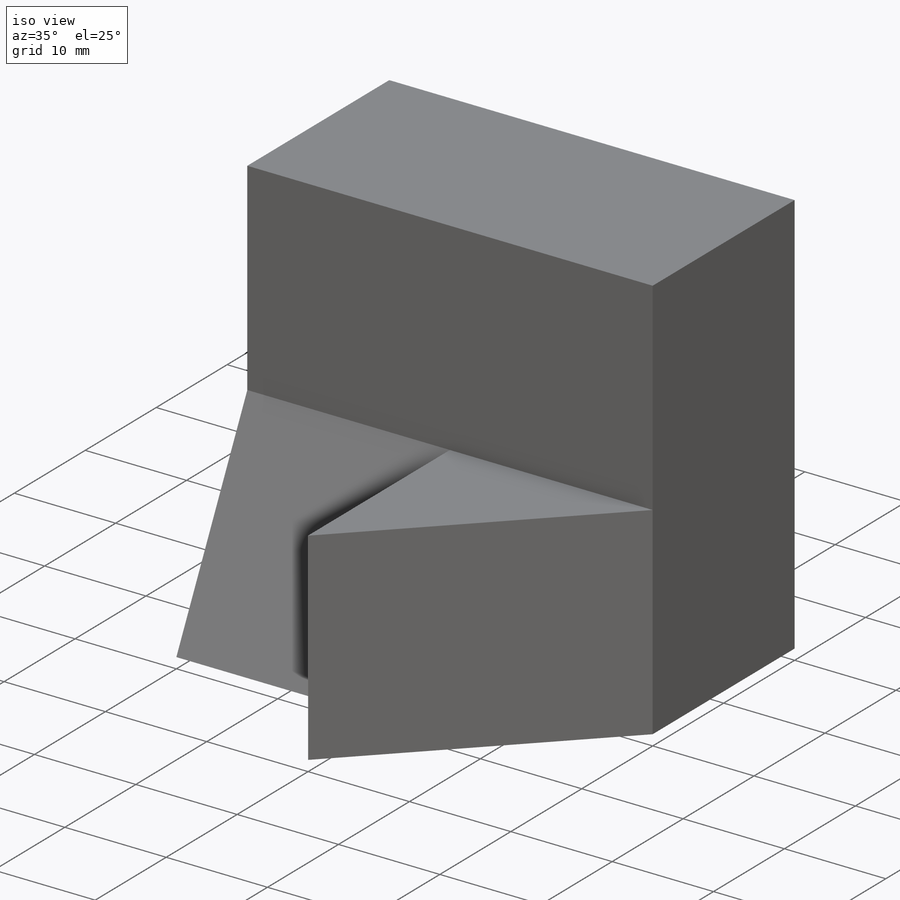
[diagram: iso view]
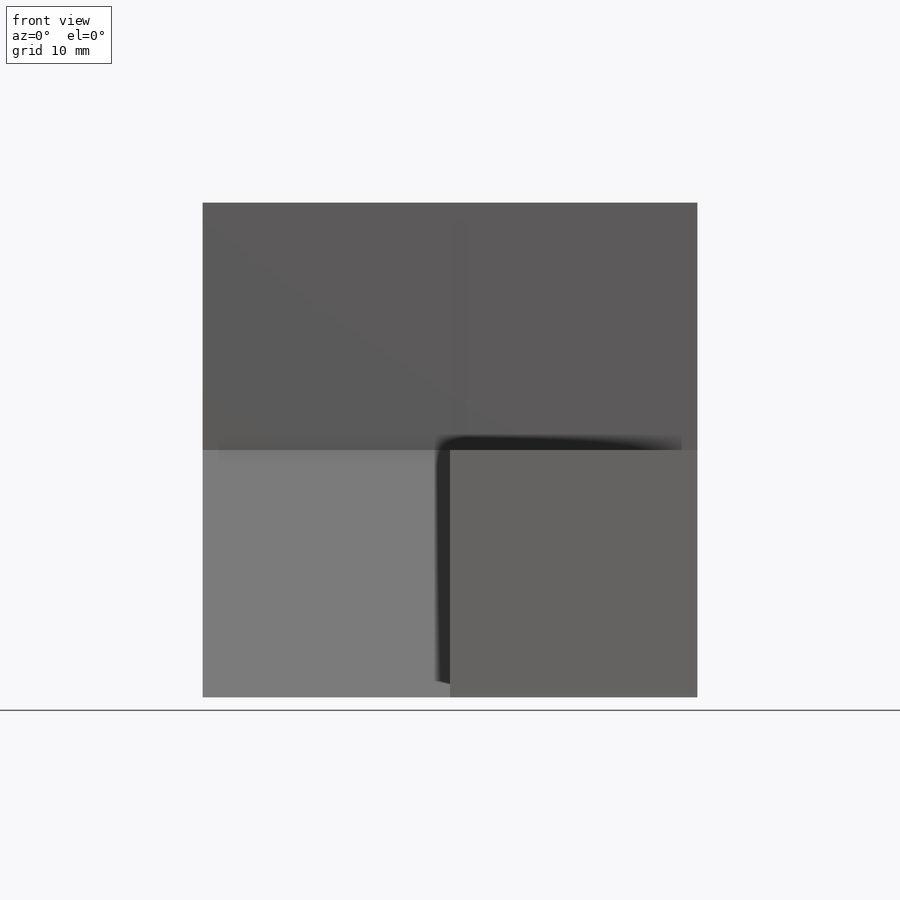
[diagram: front view]
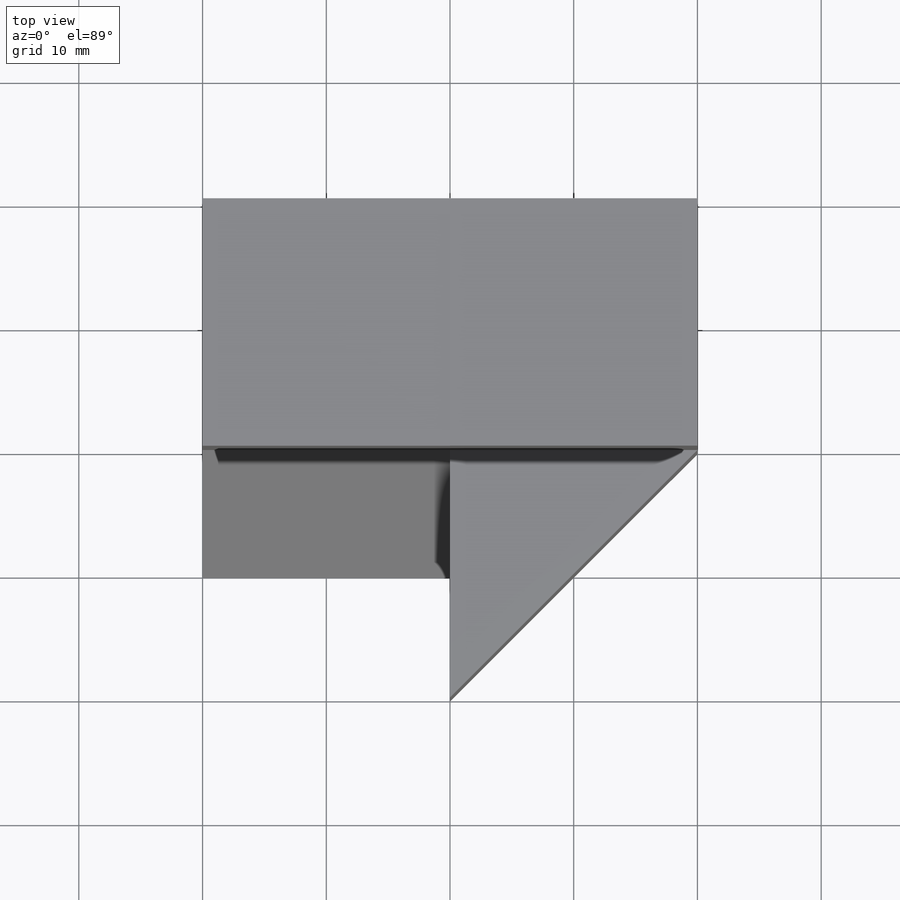
[diagram: top view]
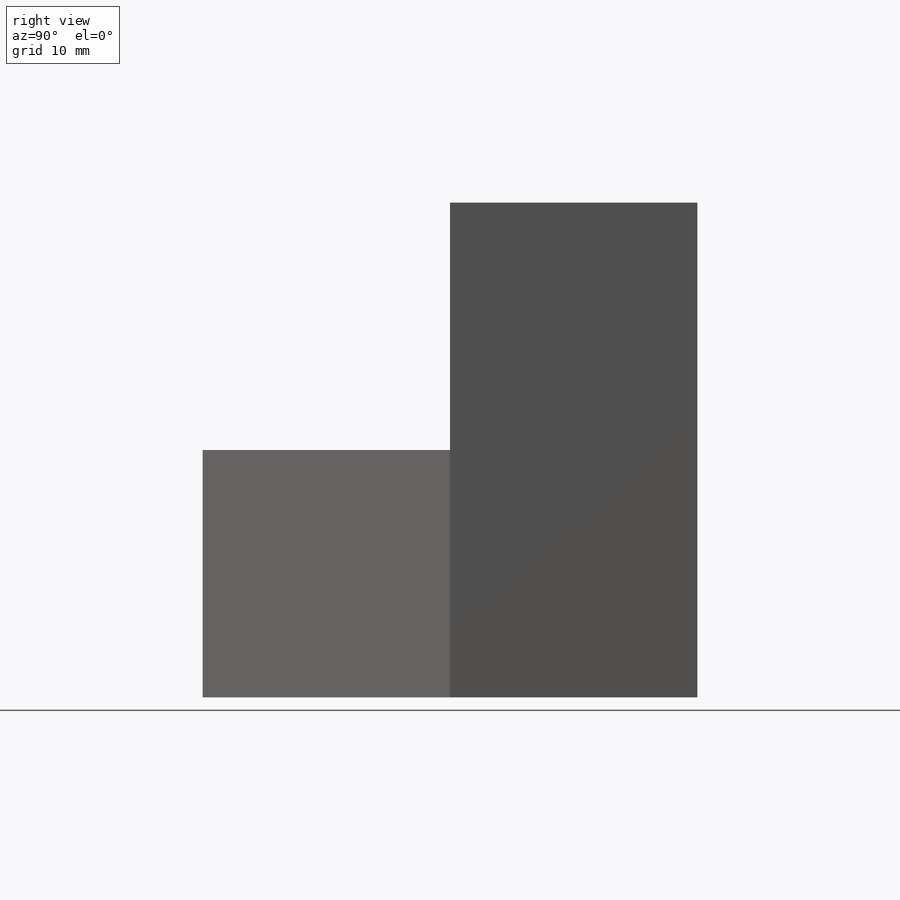
[diagram: right view]
SOLIDWORKS PART (.sldprt)
format: sldprt  version: not decoded by parser v0  size: 251,904 bytes
history: native  units: mm
features: sketch x12, cut_extrude x8, extrude x4, material x1 (+13 scaffold rows collapsed)
feature tree (38):
  scaffold x13  (default folders/planes/origin — collapsed)
  material  "Material <not specified>"
  sketch  "Sketch1"  dims[c1.D1=~57.451648mm c1.D2=~50.799352mm c2.D1=40.0mm c2.D2=40.0mm]
  extrude  "Boss-Extrude1"  Depth=40mm
  sketch  "Sketch2"  dims[c1.D1=~8.785474mm c1.D2=~18.405486mm c2.D1=20.0mm c2.D2=10.0mm]
  cut_extrude  "Cut-Extrude1"  Depth=40mm
  sketch  "Sketch3"  dims[D1=20.0mm D2=20.0mm D3=20.0mm]
  cut_extrude  "Cut-Extrude2"  Depth=40mm
  sketch  "Sketch5"  dims[D1=20.0mm D2=20.0mm]
  cut_extrude  "Cut-Extrude3"  Depth=10mm
  sketch  "Sketch7"  dims[D1=20.0mm D2=20.0mm]
  extrude  "Boss-Extrude2"  Depth=10mm
  sketch  "Sketch8"  dims[D1=20.0mm D2=20.0mm]
  extrude  "Boss-Extrude3"  Depth=10mm
  sketch  "Sketch10"  dims[D1=20.0mm]
  cut_extrude  "Cut-Extrude10"  Depth=27mm
  sketch  "Sketch11"  dims[D1=10.0mm D2=20.0mm D3=0.0001mm D4=0.0001mm D5=0.0001mm]
  cut_extrude  "Cut-Extrude12"  Depth=20mm
  sketch  "Sketch12"  dims[D1=20.0mm D2=20.0mm]
  extrude  "Boss-Extrude4"  Depth=0.0001mm
  sketch  "Sketch14"  dims[c1.D1=~15.808856mm c1.D2=~8.20922mm c2.D1=9.999mm c2.D2=19.999mm]
  cut_extrude  "Cut-Extrude19"  Depth=20.0001mm
  sketch  "Sketch15"  dims[D1=~22.360948mm]
  cut_extrude  "Cut-Extrude20"  Depth=20.0001mm
  sketch  "Sketch16"  dims[D1=20.0mm]
  cut_extrude  "Cut-Extrude21"  Depth=0.0001mm
decode coverage: 24 of 24 modeling features carry decoded parameters
note: ~ marks probable driven/reference dimensions
note: suppression state not decoded; provenance and decode notes live in map.json
